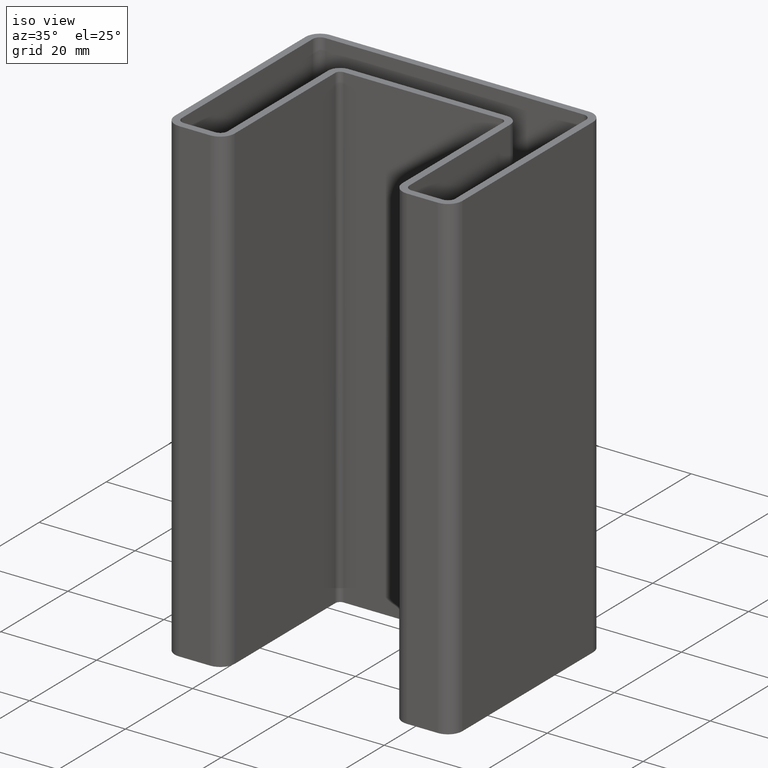
[diagram: clean part render]
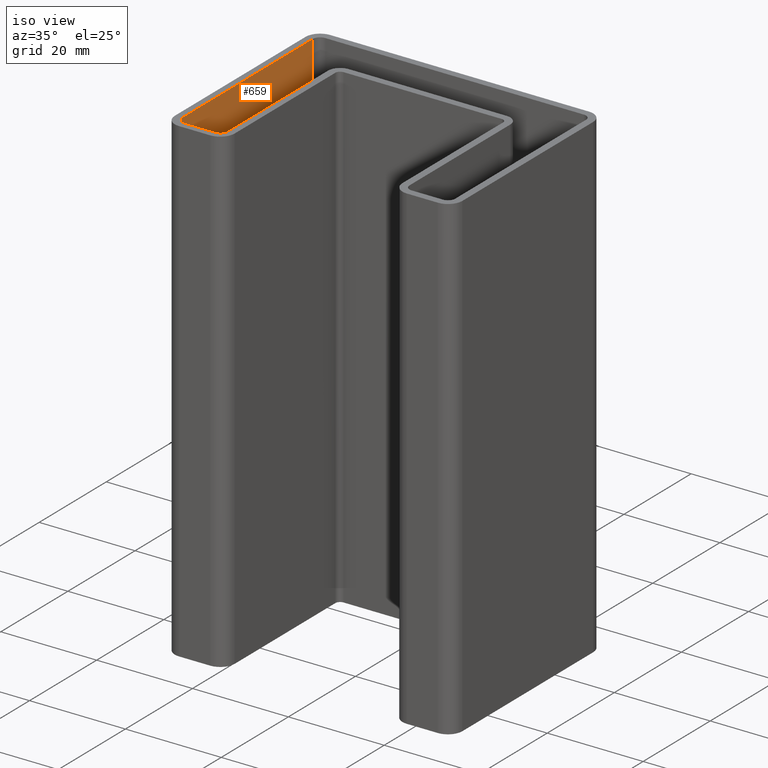
[diagram: same view with one face highlighted and labeled with its STEP entity id]
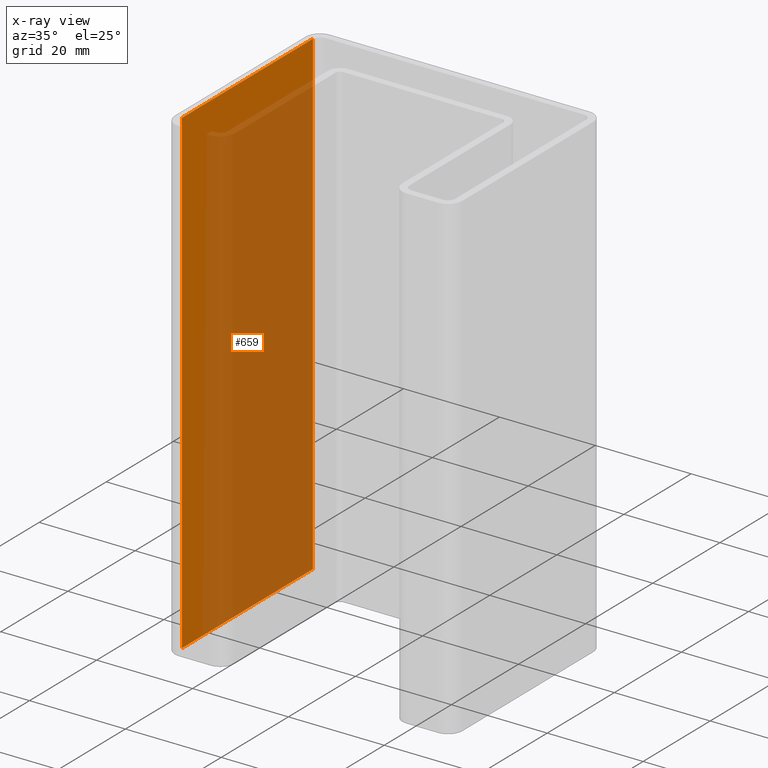
[diagram: x-ray of the same camera — body ghosted, the highlighted face saturated]
A machine part, iso view. The second image highlights one B-rep face of the part: STEP entity #659.
The next image is the same camera in x-ray: the body ghosted, the highlighted face saturated — about 76% of this face is hidden behind the body in this view.
In plain terms, the highlighted planar face has unit normal (-1, 0, 0).
Its self-contained STEP definition (entity closure, byte-faithful):
#208=ORIENTED_EDGE('',*,*,#344,.F.);
#209=ORIENTED_EDGE('',*,*,#321,.F.);
#210=ORIENTED_EDGE('',*,*,#345,.F.);
#211=ORIENTED_EDGE('',*,*,#271,.F.);
#271=EDGE_CURVE('',#367,#368,#427,.T.);
#321=EDGE_CURVE('',#408,#409,#458,.T.);
#344=EDGE_CURVE('',#409,#367,#472,.F.);
#345=EDGE_CURVE('',#368,#408,#473,.T.);
#367=VERTEX_POINT('',#974);
#368=VERTEX_POINT('',#976);
#408=VERTEX_POINT('',#1073);
#409=VERTEX_POINT('',#1075);
#427=LINE('',#975,#491);
#458=LINE('',#1074,#522);
#472=LINE('',#1120,#536);
#473=LINE('',#1121,#537);
#491=VECTOR('',#772,1000.);
#522=VECTOR('',#857,1000.);
#536=VECTOR('',#913,1000.);
#537=VECTOR('',#914,1000.);
#571=EDGE_LOOP('',(#208,#209,#210,#211));
#607=FACE_BOUND('',#571,.T.);
#632=PLANE('',#738);
#659=ADVANCED_FACE('',(#607),#632,.F.);
#738=AXIS2_PLACEMENT_3D('',#1119,#911,#912);
#772=DIRECTION('',(0.,1.,0.));
#857=DIRECTION('',(0.,-1.,0.));
#911=DIRECTION('',(-1.,7.40148683083437E-16,0.));
#912=DIRECTION('',(0.,0.,1.));
#913=DIRECTION('',(0.,0.,-1.));
#914=DIRECTION('',(0.,0.,-1.));
#974=CARTESIAN_POINT('',(-28.50000000001,-31.,50.6476146399861));
#975=CARTESIAN_POINT('',(-28.50000000001,-0.0323741007093731,50.6476146399861));
#976=CARTESIAN_POINT('',(-28.5,8.00000000000003,50.6476146399861));
#1073=CARTESIAN_POINT('',(-28.5,8.00000000000003,-49.3523853600139));
#1074=CARTESIAN_POINT('',(-28.50000000001,-0.0323741007093731,-49.3523853600239));
#1075=CARTESIAN_POINT('',(-28.50000000001,-31.,-49.3523853600239));
#1119=CARTESIAN_POINT('',(-28.5,9.00000000000002,50.6476146399861));
#1120=CARTESIAN_POINT('',(-28.5,-31.,50.6476146399861));
#1121=CARTESIAN_POINT('',(-28.5,8.00000000000003,50.6476146399861));